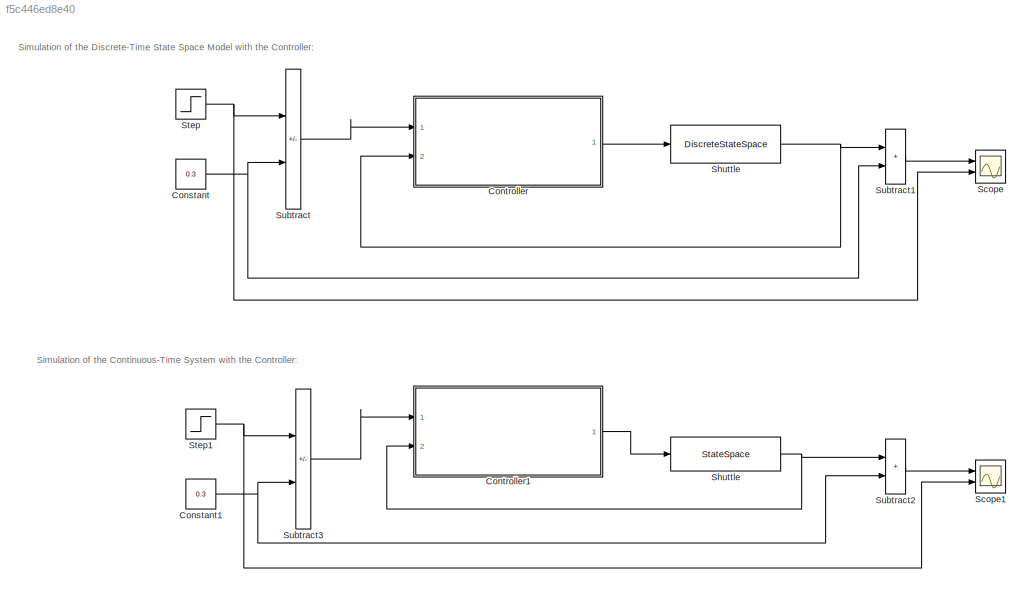
MODEL slx_f5c446ed8e40
KIND model
CONFIG AbsTol = auto
CONFIG EnableMultiTasking = off
CONFIG FixedStep = auto
CONFIG MaxStep = auto
CONFIG MinStep = auto
CONFIG RelTol = 1e-3
CONFIG SampleTimeConstraint = Unconstrained
CONFIG SolverName = VariableStepAuto
CONFIG StartTime = 0.0
CONFIG StopTime = 10.0
BLOCK [Constant] Constant
  Value = 0.3
BLOCK [Constant] Constant1
  Value = 0.3
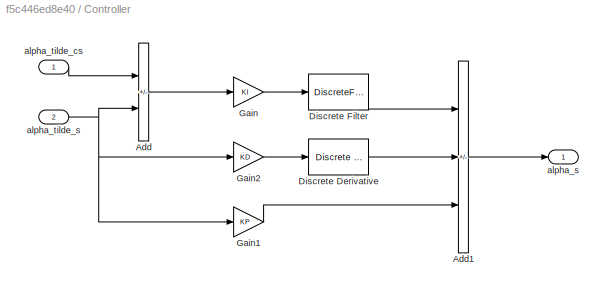
BLOCK [SubSystem] Controller
  Ports = [2, 1]
  RequestExecContextInheritance = off
BLOCK [Sum] Controller/Add
  IconShape = rectangular
  Inputs = +-
  Ports = [2, 1]
BLOCK [Sum] Controller/Add1
  IconShape = rectangular
  Inputs = +--
  Ports = [3, 1]
BLOCK [Reference] Controller/Discrete Derivative  REF=simulink/Discrete/Discrete Derivative
  Ports = [1, 1]
  SourceBlock = simulink/Discrete/Discrete Derivative
  SourceProductBaseCode = SL
  SourceType = Discrete Derivative
BLOCK [DiscreteFilter] Controller/Discrete Filter
  Denominator = [1 -1]
  InputPortMap = u0
  Numerator = [ts]
  Ports = [1, 1]
BLOCK [Gain] Controller/Gain
  Gain = KI
BLOCK [Gain] Controller/Gain1
  Gain = KP
BLOCK [Gain] Controller/Gain2
  Gain = KD
BLOCK [Outport] Controller/alpha_s
  VectorParamsAs1DForOutWhenUnconnected = off
BLOCK [Inport] Controller/alpha_tilde_cs
BLOCK [Inport] Controller/alpha_tilde_s
  Port = 2
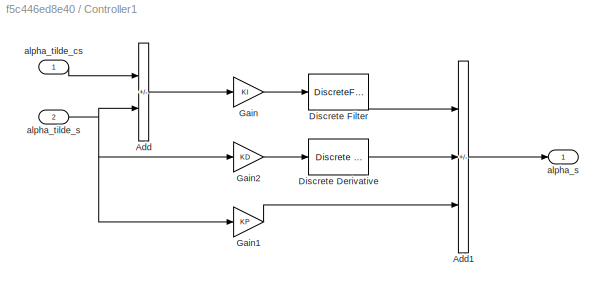
BLOCK [SubSystem] Controller1
  Ports = [2, 1]
  RequestExecContextInheritance = off
BLOCK [Sum] Controller1/Add
  IconShape = rectangular
  Inputs = +-
  Ports = [2, 1]
BLOCK [Sum] Controller1/Add1
  IconShape = rectangular
  Inputs = +--
  Ports = [3, 1]
BLOCK [Reference] Controller1/Discrete Derivative  REF=simulink/Discrete/Discrete Derivative
  Ports = [1, 1]
  SourceBlock = simulink/Discrete/Discrete Derivative
  SourceProductBaseCode = SL
  SourceType = Discrete Derivative
BLOCK [DiscreteFilter] Controller1/Discrete Filter
  Denominator = [1 -1]
  InputPortMap = u0
  Numerator = [ts]
  Ports = [1, 1]
BLOCK [Gain] Controller1/Gain
  Gain = KI
BLOCK [Gain] Controller1/Gain1
  Gain = KP
BLOCK [Gain] Controller1/Gain2
  Gain = KD
BLOCK [Outport] Controller1/alpha_s
  VectorParamsAs1DForOutWhenUnconnected = off
BLOCK [Inport] Controller1/alpha_tilde_cs
BLOCK [Inport] Controller1/alpha_tilde_s
  Port = 2
BLOCK [Scope] Scope
  Floating = off
  NumInputPorts = 2
  Ports = [2]
  ScopeSpecificationString = Simulink.scopes.TimeScopeBlockCfg('CurrentConfiguration', extmgr.ConfigurationSet(extmgr.Configuration('Core','General UI',true),extmgr.Configuration('Core','Source UI',true),extmgr.Configuration('Sources','WiredSimulink',true),extmgr.Configuration('Visuals','Time Domain',true,'SerializedDisplays',{struct('MinYLimReal','0.265','MaxYLimReal','0.30389','YLabelReal','','MinYLimMag','0.265','MaxYLimMa...<+1352ch>
BLOCK [Scope] Scope1
  Floating = off
  NumInputPorts = 2
  Ports = [2]
  ScopeSpecificationString = Simulink.scopes.TimeScopeBlockCfg('CurrentConfiguration', extmgr.ConfigurationSet(extmgr.Configuration('Core','General UI',true),extmgr.Configuration('Core','Source UI',true),extmgr.Configuration('Sources','WiredSimulink',true,'DataLoggingVariableName','ScopeData1'),extmgr.Configuration('Visuals','Time Domain',true,'SerializedDisplays',{struct('MinYLimReal','0.265','MaxYLimReal','0.30389','YLabelR...<+1391ch>
BLOCK [StateSpace] Shuttle
  A = A
  B = B
  C = C
  D = D
  InitialCondition = 0
  Ports = [1, 1]
BLOCK [DiscreteStateSpace] Shuttle 
  A = atilde
  B = btilde
  C = C
  D = D
  SampleTime = ts
BLOCK [Step] Step
  After = 0.27
  Before = 0.3
  SampleTime = ts
BLOCK [Step] Step1
  After = 0.27
  Before = 0.3
  SampleTime = ts
BLOCK [Sum] Subtract
  IconShape = rectangular
  Inputs = +-
  Ports = [2, 1]
BLOCK [Sum] Subtract1
  IconShape = rectangular
  Ports = [2, 1]
BLOCK [Sum] Subtract2
  IconShape = rectangular
  Ports = [2, 1]
BLOCK [Sum] Subtract3
  IconShape = rectangular
  Inputs = +-
  Ports = [2, 1]
ANNOTATION (root): Simulation of the Continuous-Time System with the Controller:
ANNOTATION (root): Simulation of the Discrete-Time State Space Model with the Controller:
NET Constant1:1 -> Subtract2:2, Subtract3:2
NET Constant:1 -> Subtract1:2, Subtract:2
LINE Controller/Add1:1 -> Controller/alpha_s:1
LINE Controller/Add:1 -> Controller/Gain:1
LINE Controller/Discrete Derivative:1 -> Controller/Add1:2
LINE Controller/Discrete Filter:1 -> Controller/Add1:1
LINE Controller/Gain1:1 -> Controller/Add1:3
LINE Controller/Gain2:1 -> Controller/Discrete Derivative:1
LINE Controller/Gain:1 -> Controller/Discrete Filter:1
LINE Controller/alpha_tilde_cs:1 -> Controller/Add:1
NET Controller/alpha_tilde_s:1 -> Controller/Add:2, Controller/Gain1:1, Controller/Gain2:1
LINE Controller1/Add1:1 -> Controller1/alpha_s:1
LINE Controller1/Add:1 -> Controller1/Gain:1
LINE Controller1/Discrete Derivative:1 -> Controller1/Add1:2
LINE Controller1/Discrete Filter:1 -> Controller1/Add1:1
LINE Controller1/Gain1:1 -> Controller1/Add1:3
LINE Controller1/Gain2:1 -> Controller1/Discrete Derivative:1
LINE Controller1/Gain:1 -> Controller1/Discrete Filter:1
LINE Controller1/alpha_tilde_cs:1 -> Controller1/Add:1
NET Controller1/alpha_tilde_s:1 -> Controller1/Add:2, Controller1/Gain1:1, Controller1/Gain2:1
LINE Controller1:1 -> Shuttle:1
LINE Controller:1 -> Shuttle :1
NET Shuttle :1 -> Controller:2, Subtract1:1
NET Shuttle:1 -> Controller1:2, Subtract2:1
NET Step1:1 -> Scope1:2, Subtract3:1
NET Step:1 -> Scope:2, Subtract:1
LINE Subtract1:1 -> Scope:1
LINE Subtract2:1 -> Scope1:1
LINE Subtract3:1 -> Controller1:1
LINE Subtract:1 -> Controller:1
note: NET lines group one-source signal fan-out (src -> all destinations, sorted); 1:1 wires keep LINE
